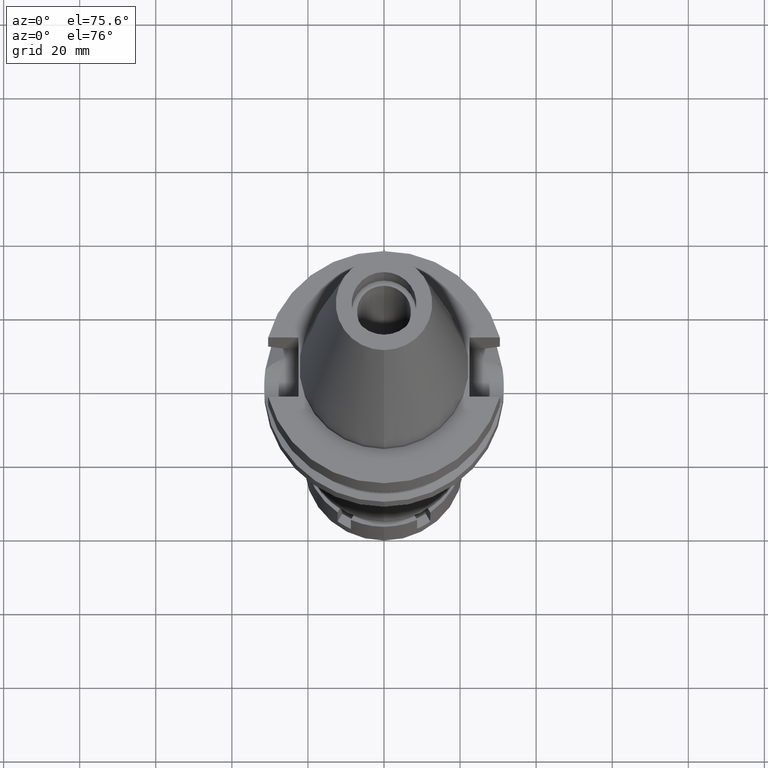
[diagram: clean part render]
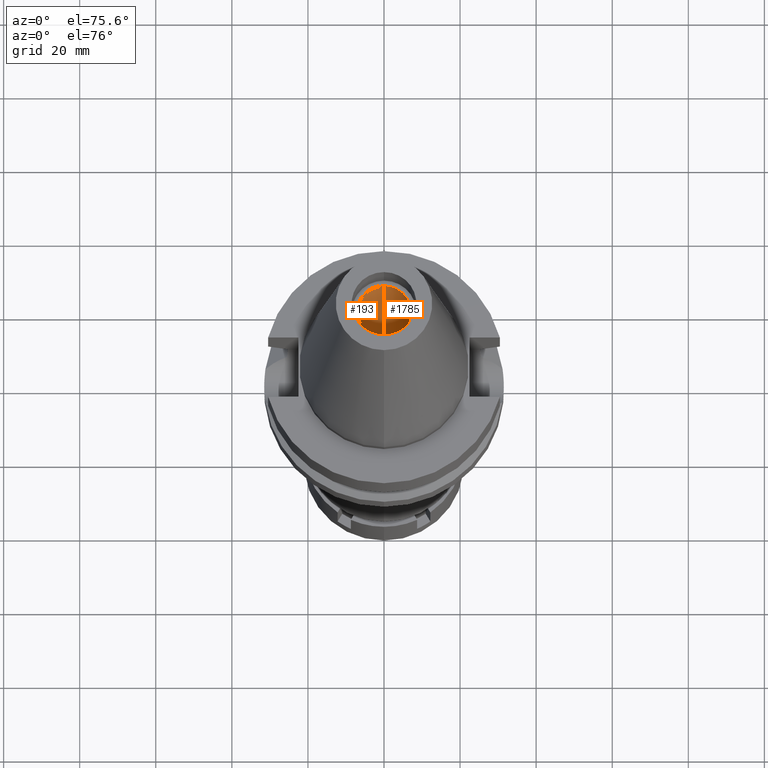
[diagram: same view with one multi-face feature highlighted, each face labeled with its STEP entity id]
A machine part, auxiliary view. The highlighted faces form ONE feature: a constant-radius fillet chain: 2 tangent blend faces with common blend radius 7.1 mm. The faces share edges in the B-rep.
Their STEP definitions:
[1] entity #1785 (Cylinder):
#3 = AXIS2_PLACEMENT_3D ( 'NONE', #785, #1853, #731 ) ;
#146 = CARTESIAN_POINT ( 'NONE',  ( 0.0000000000000000000, 7.100000000000000533, 0.0000000000000000000 ) ) ;
#262 = ORIENTED_EDGE ( 'NONE', *, *, #3463, .F. ) ;
#343 = VERTEX_POINT ( 'NONE', #3196 ) ;
#525 = AXIS2_PLACEMENT_3D ( 'NONE', #1758, #1742, #860 ) ;
#527 = CARTESIAN_POINT ( 'NONE',  ( 0.0000000000000000000, 7.100000000000000533, 0.0000000000000000000 ) ) ;
#731 = DIRECTION ( 'NONE',  ( 0.0000000000000000000, -1.000000000000000000, 0.0000000000000000000 ) ) ;
#765 = VECTOR ( 'NONE', #2768, 1000.000000000000000 ) ;
#785 = CARTESIAN_POINT ( 'NONE',  ( 0.0000000000000000000, 2.125007125879999817E-14, 0.0000000000000000000 ) ) ;
#860 = DIRECTION ( 'NONE',  ( 0.0000000000000000000, -1.000000000000000000, 0.0000000000000000000 ) ) ;
#983 = DIRECTION ( 'NONE',  ( 0.0000000000000000000, 0.0000000000000000000, -1.000000000000000000 ) ) ;
#1113 = AXIS2_PLACEMENT_3D ( 'NONE', #1816, #983, #2943 ) ;
#1258 = CARTESIAN_POINT ( 'NONE',  ( 0.0000000000000000000, -7.100000000000000533, 0.0000000000000000000 ) ) ;
#1263 = VERTEX_POINT ( 'NONE', #1258 ) ;
#1407 = VECTOR ( 'NONE', #2467, 1000.000000000000000 ) ;
#1472 = EDGE_CURVE ( 'NONE', #2905, #343, #2188, .T. ) ;
#1477 = CIRCLE ( 'NONE', #525, 7.100000000000000533 ) ;
#1501 = ORIENTED_EDGE ( 'NONE', *, *, #1472, .F. ) ;
#1742 = DIRECTION ( 'NONE',  ( 0.0000000000000000000, 0.0000000000000000000, 1.000000000000000000 ) ) ;
#1758 = CARTESIAN_POINT ( 'NONE',  ( 0.0000000000000000000, 2.125007125879999817E-14, 56.39999999999999858 ) ) ;
#1785 = ADVANCED_FACE ( 'NONE', ( #1801 ), #2904, .F. ) ;
#1801 = FACE_OUTER_BOUND ( 'NONE', #2199, .T. ) ;
#1816 = CARTESIAN_POINT ( 'NONE',  ( 0.0000000000000000000, 2.125007125879999817E-14, 73.51999999999999602 ) ) ;
#1853 = DIRECTION ( 'NONE',  ( 0.0000000000000000000, 0.0000000000000000000, 1.000000000000000000 ) ) ;
#1944 = EDGE_CURVE ( 'NONE', #2348, #343, #1477, .T. ) ;
#2188 = LINE ( 'NONE', #527, #765 ) ;
#2199 = EDGE_LOOP ( 'NONE', ( #262, #2478, #3067, #1501 ) ) ;
#2348 = VERTEX_POINT ( 'NONE', #3006 ) ;
#2390 = EDGE_CURVE ( 'NONE', #1263, #2348, #2434, .T. ) ;
#2434 = LINE ( 'NONE', #3019, #1407 ) ;
#2467 = DIRECTION ( 'NONE',  ( 0.0000000000000000000, 0.0000000000000000000, 1.000000000000000000 ) ) ;
#2478 = ORIENTED_EDGE ( 'NONE', *, *, #2390, .T. ) ;
#2768 = DIRECTION ( 'NONE',  ( 0.0000000000000000000, 0.0000000000000000000, 1.000000000000000000 ) ) ;
#2904 = CYLINDRICAL_SURFACE ( 'NONE', #1113, 7.100000000000000533 ) ;
#2905 = VERTEX_POINT ( 'NONE', #146 ) ;
#2943 = DIRECTION ( 'NONE',  ( 0.0000000000000000000, -1.000000000000000000, 0.0000000000000000000 ) ) ;
#3006 = CARTESIAN_POINT ( 'NONE',  ( 0.0000000000000000000, -7.100000000000000533, 56.39999999999999858 ) ) ;
#3019 = CARTESIAN_POINT ( 'NONE',  ( 0.0000000000000000000, -7.100000000000000533, 0.0000000000000000000 ) ) ;
#3067 = ORIENTED_EDGE ( 'NONE', *, *, #1944, .T. ) ;
#3196 = CARTESIAN_POINT ( 'NONE',  ( 0.0000000000000000000, 7.100000000000000533, 56.39999999999999858 ) ) ;
#3199 = CIRCLE ( 'NONE', #3, 7.100000000000000533 ) ;
#3463 = EDGE_CURVE ( 'NONE', #1263, #2905, #3199, .T. ) ;
[2] entity #193 (Cylinder):
#146 = CARTESIAN_POINT ( 'NONE',  ( 0.0000000000000000000, 7.100000000000000533, 0.0000000000000000000 ) ) ;
#193 = ADVANCED_FACE ( 'NONE', ( #1367 ), #1661, .F. ) ;
#343 = VERTEX_POINT ( 'NONE', #3196 ) ;
#527 = CARTESIAN_POINT ( 'NONE',  ( 0.0000000000000000000, 7.100000000000000533, 0.0000000000000000000 ) ) ;
#558 = EDGE_CURVE ( 'NONE', #343, #2348, #2447, .T. ) ;
#650 = CIRCLE ( 'NONE', #2212, 7.100000000000000533 ) ;
#765 = VECTOR ( 'NONE', #2768, 1000.000000000000000 ) ;
#1066 = CARTESIAN_POINT ( 'NONE',  ( 0.0000000000000000000, 2.125007125879999817E-14, 73.51999999999999602 ) ) ;
#1112 = ORIENTED_EDGE ( 'NONE', *, *, #558, .T. ) ;
#1207 = DIRECTION ( 'NONE',  ( 0.0000000000000000000, 0.0000000000000000000, 1.000000000000000000 ) ) ;
#1258 = CARTESIAN_POINT ( 'NONE',  ( 0.0000000000000000000, -7.100000000000000533, 0.0000000000000000000 ) ) ;
#1263 = VERTEX_POINT ( 'NONE', #1258 ) ;
#1287 = ORIENTED_EDGE ( 'NONE', *, *, #1541, .T. ) ;
#1367 = FACE_OUTER_BOUND ( 'NONE', #2979, .T. ) ;
#1407 = VECTOR ( 'NONE', #2467, 1000.000000000000000 ) ;
#1435 = DIRECTION ( 'NONE',  ( 0.0000000000000000000, 0.0000000000000000000, -1.000000000000000000 ) ) ;
#1472 = EDGE_CURVE ( 'NONE', #2905, #343, #2188, .T. ) ;
#1541 = EDGE_CURVE ( 'NONE', #1263, #2905, #650, .T. ) ;
#1661 = CYLINDRICAL_SURFACE ( 'NONE', #3105, 7.100000000000000533 ) ;
#1690 = DIRECTION ( 'NONE',  ( 0.0000000000000000000, -1.000000000000000000, 0.0000000000000000000 ) ) ;
#1745 = CARTESIAN_POINT ( 'NONE',  ( 0.0000000000000000000, 2.125007125879999817E-14, 0.0000000000000000000 ) ) ;
#1829 = AXIS2_PLACEMENT_3D ( 'NONE', #2577, #1207, #3106 ) ;
#2188 = LINE ( 'NONE', #527, #765 ) ;
#2212 = AXIS2_PLACEMENT_3D ( 'NONE', #1745, #1435, #1690 ) ;
#2348 = VERTEX_POINT ( 'NONE', #3006 ) ;
#2390 = EDGE_CURVE ( 'NONE', #1263, #2348, #2434, .T. ) ;
#2434 = LINE ( 'NONE', #3019, #1407 ) ;
#2437 = ORIENTED_EDGE ( 'NONE', *, *, #1472, .T. ) ;
#2447 = CIRCLE ( 'NONE', #1829, 7.100000000000000533 ) ;
#2467 = DIRECTION ( 'NONE',  ( 0.0000000000000000000, 0.0000000000000000000, 1.000000000000000000 ) ) ;
#2577 = CARTESIAN_POINT ( 'NONE',  ( 0.0000000000000000000, 2.125007125879999817E-14, 56.39999999999999858 ) ) ;
#2768 = DIRECTION ( 'NONE',  ( 0.0000000000000000000, 0.0000000000000000000, 1.000000000000000000 ) ) ;
#2905 = VERTEX_POINT ( 'NONE', #146 ) ;
#2979 = EDGE_LOOP ( 'NONE', ( #1112, #3184, #1287, #2437 ) ) ;
#3006 = CARTESIAN_POINT ( 'NONE',  ( 0.0000000000000000000, -7.100000000000000533, 56.39999999999999858 ) ) ;
#3019 = CARTESIAN_POINT ( 'NONE',  ( 0.0000000000000000000, -7.100000000000000533, 0.0000000000000000000 ) ) ;
#3038 = DIRECTION ( 'NONE',  ( 0.0000000000000000000, -1.000000000000000000, 0.0000000000000000000 ) ) ;
#3105 = AXIS2_PLACEMENT_3D ( 'NONE', #1066, #3312, #3038 ) ;
#3106 = DIRECTION ( 'NONE',  ( 0.0000000000000000000, 1.000000000000000000, 0.0000000000000000000 ) ) ;
#3184 = ORIENTED_EDGE ( 'NONE', *, *, #2390, .F. ) ;
#3196 = CARTESIAN_POINT ( 'NONE',  ( 0.0000000000000000000, 7.100000000000000533, 56.39999999999999858 ) ) ;
#3312 = DIRECTION ( 'NONE',  ( 0.0000000000000000000, 0.0000000000000000000, -1.000000000000000000 ) ) ;